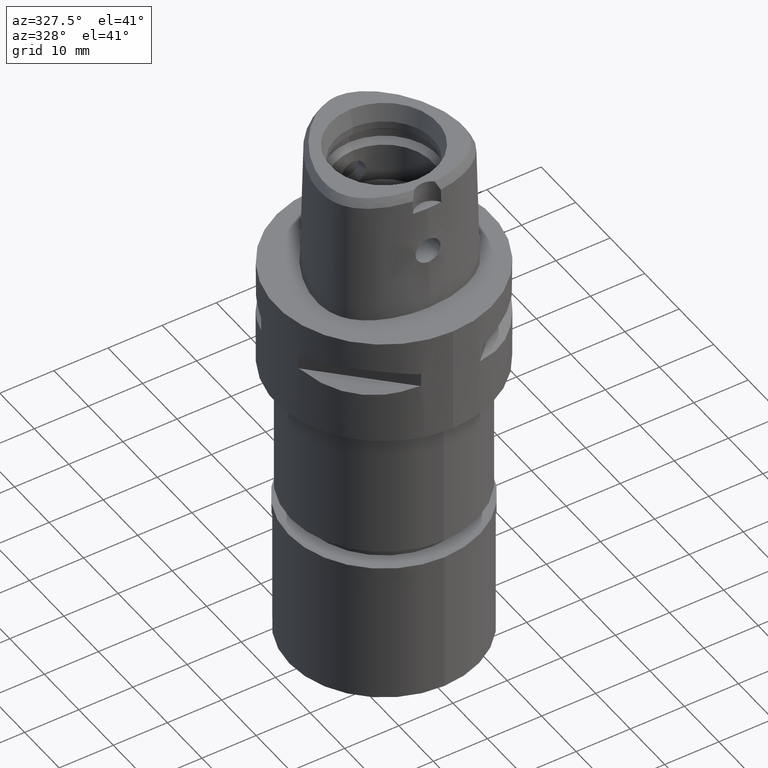
[diagram: clean part render]
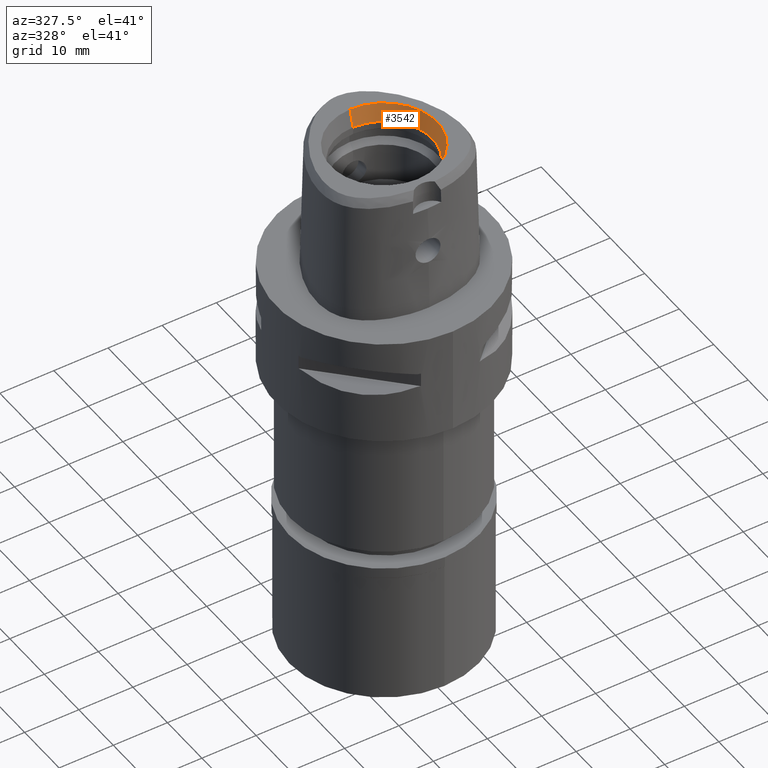
[diagram: same view with one face highlighted and labeled with its STEP entity id]
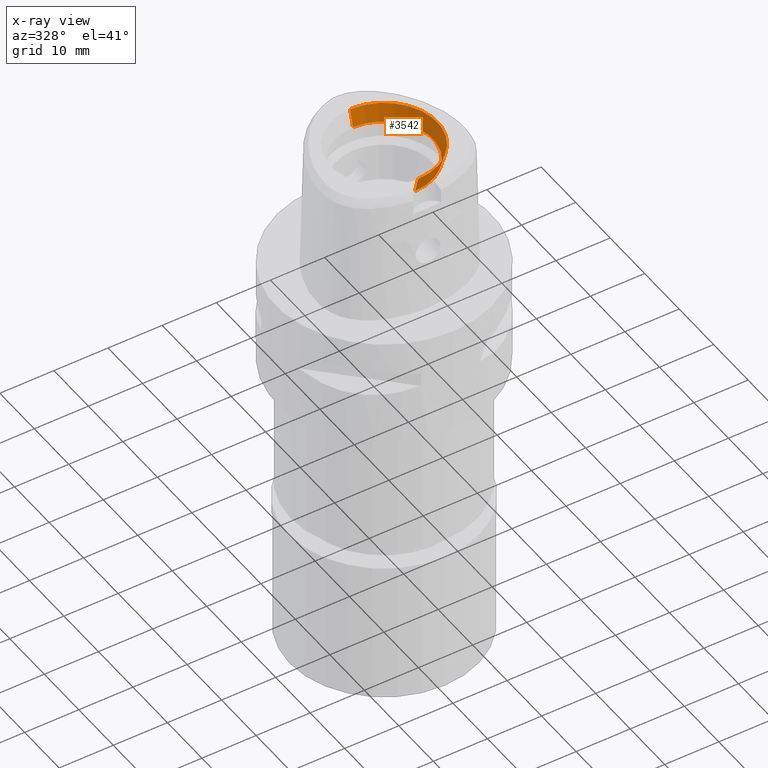
[diagram: x-ray of the same camera — body ghosted, the highlighted face saturated]
A machine part, auxiliary view. The second image highlights one B-rep face of the part: STEP entity #3542.
The next image is the same camera in x-ray: the body ghosted, the highlighted face saturated — about 0% of this face is hidden behind the body in this view.
In plain terms, the highlighted conical surface has half-angle 15 deg.
Its self-contained STEP definition (entity closure, byte-faithful):
#15 = DIRECTION ( 'NONE',  ( 0.0000000000000000000, 1.000000000000000000, 0.0000000000000000000 ) ) ;
#133 = EDGE_CURVE ( 'NONE', #2855, #4057, #1459, .T. ) ;
#380 = CARTESIAN_POINT ( 'NONE',  ( 0.0000000000000000000, 1.499580005555999857E-14, 22.45000000000000284 ) ) ;
#490 = DIRECTION ( 'NONE',  ( 0.0000000000000000000, -1.000000000000000000, 0.0000000000000000000 ) ) ;
#507 = AXIS2_PLACEMENT_3D ( 'NONE', #380, #3595, #15 ) ;
#577 = EDGE_CURVE ( 'NONE', #1651, #4057, #2958, .T. ) ;
#593 = CARTESIAN_POINT ( 'NONE',  ( 0.0000000000000000000, 1.499580005555999857E-14, 24.00000000000000000 ) ) ;
#676 = CARTESIAN_POINT ( 'NONE',  ( 0.0000000000000000000, 9.000000000000000000, 20.89999999999999858 ) ) ;
#739 = AXIS2_PLACEMENT_3D ( 'NONE', #4060, #2149, #2975 ) ;
#946 = ORIENTED_EDGE ( 'NONE', *, *, #2270, .T. ) ;
#1033 = ORIENTED_EDGE ( 'NONE', *, *, #2317, .F. ) ;
#1055 = CARTESIAN_POINT ( 'NONE',  ( 0.0000000000000000000, -9.830642496535999086, 24.00000000000000000 ) ) ;
#1069 = FACE_OUTER_BOUND ( 'NONE', #3292, .T. ) ;
#1419 = CARTESIAN_POINT ( 'NONE',  ( 0.0000000000000000000, -9.000000000000000000, 20.89999999999999858 ) ) ;
#1442 = DIRECTION ( 'NONE',  ( 0.0000000000000000000, -0.2588190451024934280, 0.9659258262890755287 ) ) ;
#1459 = LINE ( 'NONE', #676, #2103 ) ;
#1503 = AXIS2_PLACEMENT_3D ( 'NONE', #593, #4612, #490 ) ;
#1569 = CIRCLE ( 'NONE', #739, 9.000000000000000000 ) ;
#1651 = VERTEX_POINT ( 'NONE', #1055 ) ;
#1799 = LINE ( 'NONE', #1419, #2019 ) ;
#2019 = VECTOR ( 'NONE', #1442, 1000.000000000000227 ) ;
#2103 = VECTOR ( 'NONE', #2546, 1000.000000000000227 ) ;
#2149 = DIRECTION ( 'NONE',  ( 0.0000000000000000000, 0.0000000000000000000, 1.000000000000000000 ) ) ;
#2270 = EDGE_CURVE ( 'NONE', #4236, #1651, #1799, .T. ) ;
#2317 = EDGE_CURVE ( 'NONE', #4236, #2855, #1569, .T. ) ;
#2546 = DIRECTION ( 'NONE',  ( 0.0000000000000000000, 0.2588190451024934280, 0.9659258262890755287 ) ) ;
#2560 = ORIENTED_EDGE ( 'NONE', *, *, #133, .F. ) ;
#2855 = VERTEX_POINT ( 'NONE', #3960 ) ;
#2892 = CARTESIAN_POINT ( 'NONE',  ( 0.0000000000000000000, -9.000000000000000000, 20.89999999999999858 ) ) ;
#2958 = CIRCLE ( 'NONE', #1503, 9.830642496535999086 ) ;
#2975 = DIRECTION ( 'NONE',  ( 0.0000000000000000000, -1.000000000000000000, 0.0000000000000000000 ) ) ;
#3292 = EDGE_LOOP ( 'NONE', ( #2560, #1033, #946, #4557 ) ) ;
#3542 = ADVANCED_FACE ( 'NONE', ( #1069 ), #3588, .F. ) ;
#3588 = CONICAL_SURFACE ( 'NONE', #507, 9.415321248268000431, 0.2617993877991000029 ) ;
#3595 = DIRECTION ( 'NONE',  ( 0.0000000000000000000, 0.0000000000000000000, 1.000000000000000000 ) ) ;
#3882 = CARTESIAN_POINT ( 'NONE',  ( 0.0000000000000000000, 9.830642496535999086, 24.00000000000000000 ) ) ;
#3960 = CARTESIAN_POINT ( 'NONE',  ( 0.0000000000000000000, 9.000000000000000000, 20.89999999999999858 ) ) ;
#4057 = VERTEX_POINT ( 'NONE', #3882 ) ;
#4060 = CARTESIAN_POINT ( 'NONE',  ( 0.0000000000000000000, 1.499580005555999857E-14, 20.89999999999999858 ) ) ;
#4236 = VERTEX_POINT ( 'NONE', #2892 ) ;
#4557 = ORIENTED_EDGE ( 'NONE', *, *, #577, .T. ) ;
#4612 = DIRECTION ( 'NONE',  ( 0.0000000000000000000, 0.0000000000000000000, 1.000000000000000000 ) ) ;